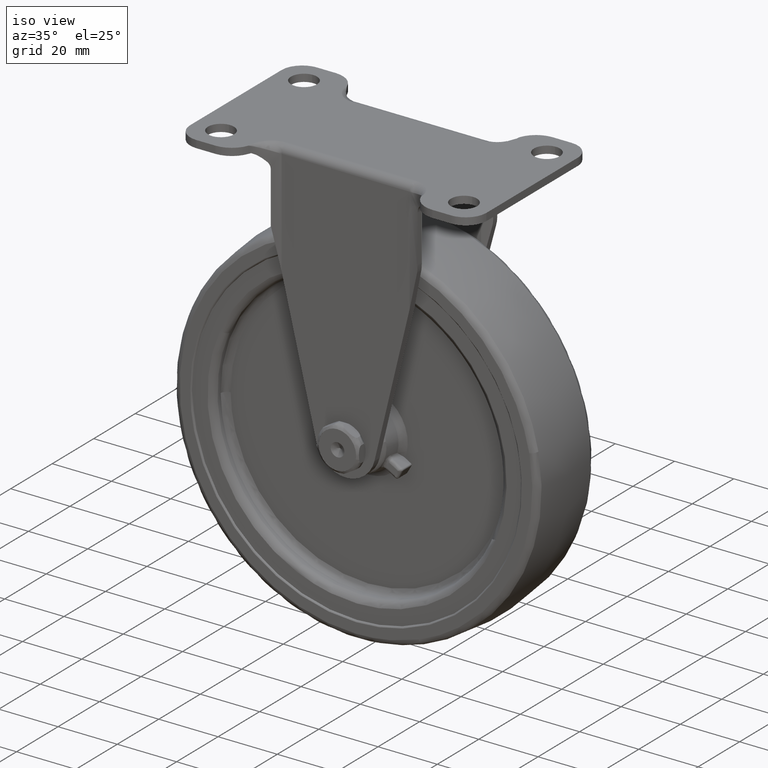
[diagram: clean part render]
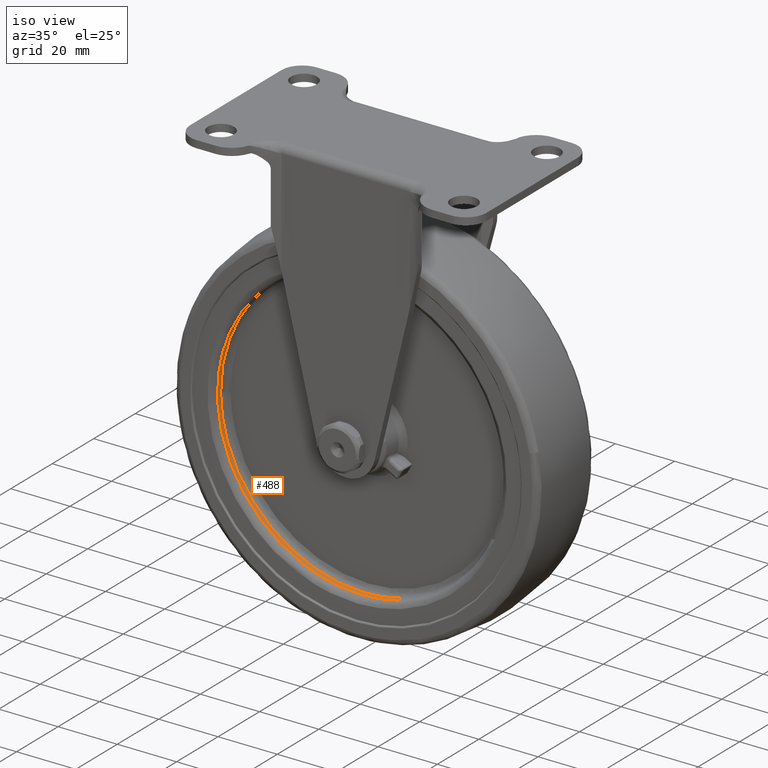
[diagram: same view with one face highlighted and labeled with its STEP entity id]
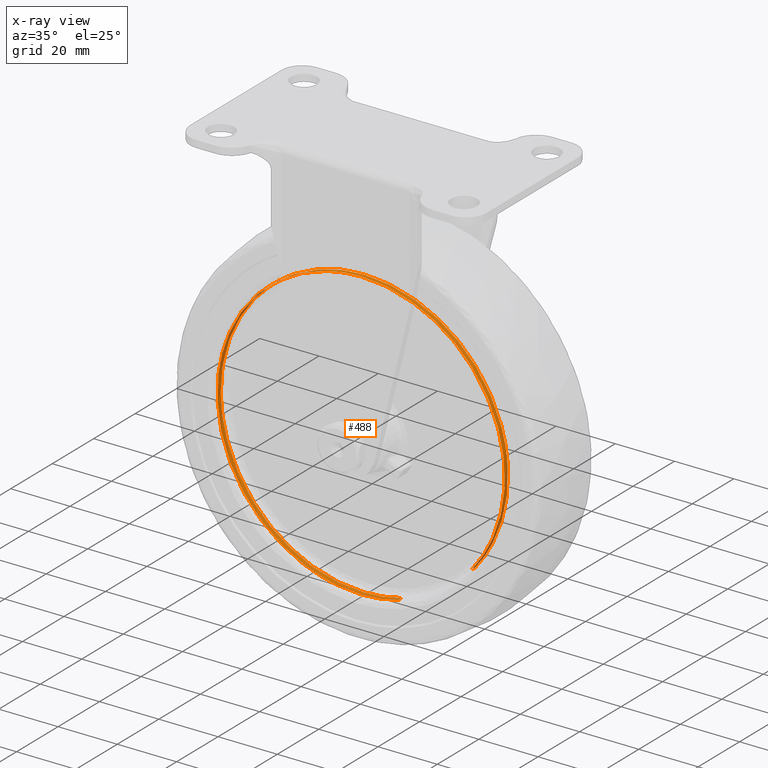
[diagram: x-ray of the same camera — body ghosted, the highlighted face saturated]
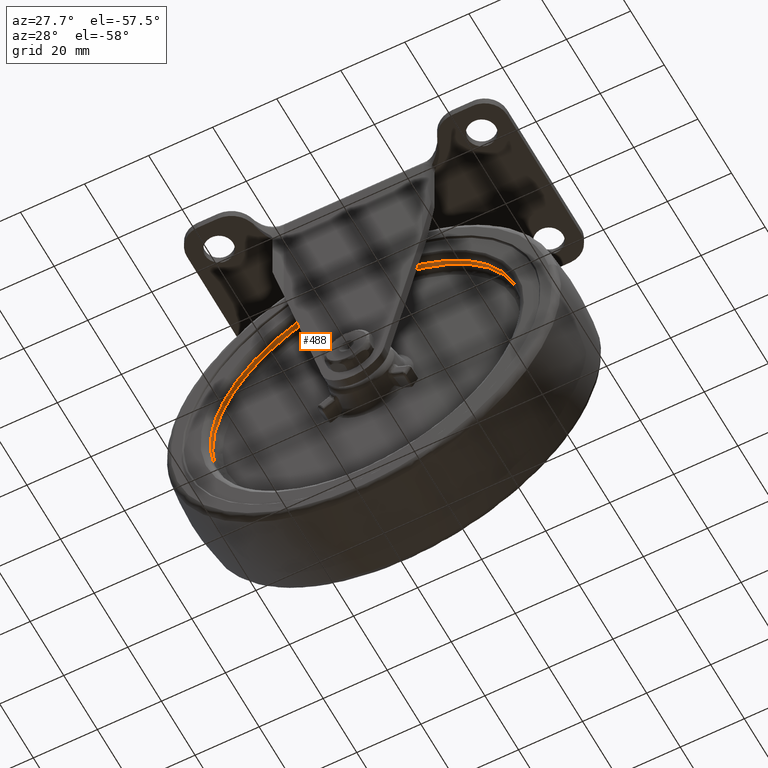
[diagram: same view with one face highlighted and labeled with its STEP entity id]
A machine part, iso view. The second image highlights one B-rep face of the part: STEP entity #488.
The next image is the same camera in x-ray: the body ghosted, the highlighted face saturated — about 0% of this face is hidden behind the body in this view.
A second angle (auxiliary view) of the same face is appended — the face is thin or edge-on in the first view.
In plain terms, the highlighted face is a freeform B-spline surface patch.
Its self-contained STEP definition (entity closure, byte-faithful):
#288=CARTESIAN_POINT('',(-26.470623298217621,-11.037500000110342,-130.353652146495820));
#289=CARTESIAN_POINT('',(-50.587070742965992,-11.037500000110343,-136.802755704084550));
#290=CARTESIAN_POINT('',(-69.849793683471546,-11.037500000110340,-120.923792294304410));
#291=CARTESIAN_POINT('',(-107.273585977775970,-11.037500000110342,-90.073998610832859));
#292=CARTESIAN_POINT('',(-76.423792294304405,-11.037500000110340,-52.650206316528461));
#293=CARTESIAN_POINT('',(-45.573998610832874,-11.037500000110342,-15.226414022224063));
#294=CARTESIAN_POINT('',(-8.150206316528461,-11.037500000110340,-46.076207705695602));
#295=CARTESIAN_POINT('',(29.273585977775941,-11.037500000110342,-76.926001389167141));
#296=CARTESIAN_POINT('',(-1.576207705695595,-11.037500000110340,-114.349793683471600));
#297=CARTESIAN_POINT('',(-26.470623298217621,-9.461562495473284,-130.353652146495820));
#298=CARTESIAN_POINT('',(-50.587070742965992,-9.461562495473284,-136.802755704084550));
#299=CARTESIAN_POINT('',(-69.849793683471546,-9.461562495473283,-120.923792294304410));
#300=CARTESIAN_POINT('',(-107.273585977775970,-9.461562495473283,-90.073998610832859));
#301=CARTESIAN_POINT('',(-76.423792294304405,-9.461562495473283,-52.650206316528461));
#302=CARTESIAN_POINT('',(-45.573998610832874,-9.461562495473283,-15.226414022224063));
#303=CARTESIAN_POINT('',(-8.150206316528461,-9.461562495473283,-46.076207705695602));
#304=CARTESIAN_POINT('',(29.273585977775941,-9.461562495473283,-76.926001389167141));
#305=CARTESIAN_POINT('',(-1.576207705695595,-9.461562495473283,-114.349793683471600));
#313=(BOUNDED_SURFACE()B_SPLINE_SURFACE(2,1,((#288,#297),(#289,#298),(#290,#299),(#291,#300),(#292,#301),(#293,#302),(#294,#303),(#295,#304),(#296,#305)),.UNSPECIFIED.,.F.,.F.,.U.)B_SPLINE_SURFACE_WITH_KNOTS((3,2,2,2,3),(2,2),(0.0,48.214458660228253,128.571889760608710,208.929320860989090,289.286751961369480),(0.0,1.0),.UNSPECIFIED.)GEOMETRIC_REPRESENTATION_ITEM()RATIONAL_B_SPLINE_SURFACE(((0.859411254969543,0.859411254969543),(0.824264068711928,0.824264068711928),(1.0,1.0),(0.707106781186548,0.707106781186548),(1.0,1.0),(0.707106781186548,0.707106781186548),(1.0,1.0),(0.707106781186548,0.707106781186548),(1.0,1.0)))REPRESENTATION_ITEM('')SURFACE());
#314=CARTESIAN_POINT('',(-26.470623298162270,-9.500000000000000,-130.353652146481010));
#315=VERTEX_POINT('',#314);
#316=CARTESIAN_POINT('',(-39.0,-9.500000000000000,-132.0));
#317=VERTEX_POINT('',#316);
#318=CARTESIAN_POINT('',(-26.470623298162277,-9.500000000000000,-130.353652146481070));
#319=CARTESIAN_POINT('',(-32.627147399573055,-9.500000000000000,-132.0));
#320=CARTESIAN_POINT('',(-39.0,-9.500000000000000,-132.0));
#328=(BOUNDED_CURVE()B_SPLINE_CURVE(2,(#318,#319,#320),.UNSPECIFIED.,.F.,.U.)B_SPLINE_CURVE_WITH_KNOTS((3,3),(0.455941417796582,0.500000000000000),.UNSPECIFIED.)CURVE()GEOMETRIC_REPRESENTATION_ITEM()RATIONAL_B_SPLINE_CURVE((0.914957991051761,0.948382160168336,1.0))REPRESENTATION_ITEM(''));
#329=EDGE_CURVE('',#315,#317,#328,.T.);
#330=ORIENTED_EDGE('',*,*,#329,.T.);
#331=CARTESIAN_POINT('',(-87.496170643882991,-9.499999995598589,-84.109452934508525));
#332=VERTEX_POINT('',#331);
#333=CARTESIAN_POINT('',(-39.0,-9.500000000000000,-132.0));
#334=CARTESIAN_POINT('',(-86.894328600177218,-9.500000000000000,-132.0));
#335=CARTESIAN_POINT('',(-87.496170643882991,-9.499999995598589,-84.109452934508525));
#343=(BOUNDED_CURVE()B_SPLINE_CURVE(2,(#333,#334,#335),.UNSPECIFIED.,.F.,.U.)B_SPLINE_CURVE_WITH_KNOTS((3,3),(0.500000000000000,0.747784295920526),.UNSPECIFIED.)CURVE()GEOMETRIC_REPRESENTATION_ITEM()RATIONAL_B_SPLINE_CURVE((1.0,0.709702639985649,0.994854295641245))REPRESENTATION_ITEM(''));
#344=EDGE_CURVE('',#317,#332,#343,.T.);
#345=ORIENTED_EDGE('',*,*,#344,.T.);
#346=CARTESIAN_POINT('',(-39.0,-9.500000000000000,-35.0));
#347=VERTEX_POINT('',#346);
#348=CARTESIAN_POINT('',(-87.496170643882991,-9.499999995598589,-84.109452934508525));
#349=CARTESIAN_POINT('',(-87.500000000000000,-9.499999999999998,-83.804738497772590));
#350=CARTESIAN_POINT('',(-87.500000000000000,-9.500000000000000,-83.500000000000000));
#351=CARTESIAN_POINT('',(-87.499999999999986,-9.500000000000000,-35.0));
#352=CARTESIAN_POINT('',(-39.0,-9.500000000000000,-35.0));
#360=(BOUNDED_CURVE()B_SPLINE_CURVE(2,(#348,#349,#350,#351,#352),.UNSPECIFIED.,.F.,.U.)B_SPLINE_CURVE_WITH_KNOTS((3,2,3),(0.747784295920525,0.750000000000000,1.0),.UNSPECIFIED.)CURVE()GEOMETRIC_REPRESENTATION_ITEM()RATIONAL_B_SPLINE_CURVE((0.994854295641243,0.997404141200898,1.0,0.707106781186547,1.0))REPRESENTATION_ITEM(''));
#361=EDGE_CURVE('',#332,#347,#360,.T.);
#362=ORIENTED_EDGE('',*,*,#361,.T.);
#363=CARTESIAN_POINT('',(9.381935181251000,-9.499999995586382,-80.117937298448467));
#364=VERTEX_POINT('',#363);
#365=CARTESIAN_POINT('',(-39.0,-9.500000000000000,-35.0));
#366=CARTESIAN_POINT('',(6.228037092163803,-9.500000000000000,-35.000000000000007));
#367=CARTESIAN_POINT('',(9.381935181251000,-9.499999995586382,-80.117937298448467));
#375=(BOUNDED_CURVE()B_SPLINE_CURVE(2,(#365,#366,#367),.UNSPECIFIED.,.F.,.U.)B_SPLINE_CURVE_WITH_KNOTS((3,3),(0.0,0.237833686534121),.UNSPECIFIED.)CURVE()GEOMETRIC_REPRESENTATION_ITEM()RATIONAL_B_SPLINE_CURVE((1.0,0.721360504035007,0.972879876384922))REPRESENTATION_ITEM(''));
#376=EDGE_CURVE('',#347,#364,#375,.T.);
#377=ORIENTED_EDGE('',*,*,#376,.T.);
#378=CARTESIAN_POINT('',(-1.576200945060497,-9.499999999999464,-114.349785482161710));
#379=VERTEX_POINT('',#378);
#380=CARTESIAN_POINT('',(9.381935181251000,-9.499999995586382,-80.117937298448467));
#381=CARTESIAN_POINT('',(9.500000000000002,-9.500000000000000,-81.806907879933377));
#382=CARTESIAN_POINT('',(9.500000000000002,-9.500000000000000,-83.500000000000000));
#383=CARTESIAN_POINT('',(9.500000000000002,-9.500000000000002,-100.913273299615010));
#384=CARTESIAN_POINT('',(-1.576200945060497,-9.499999999999464,-114.349785482161710));
#392=(BOUNDED_CURVE()B_SPLINE_CURVE(2,(#380,#381,#382,#383,#384),.UNSPECIFIED.,.F.,.U.)B_SPLINE_CURVE_WITH_KNOTS((3,2,3),(0.237833686534121,0.250000000000000,0.360504592716539),.UNSPECIFIED.)CURVE()GEOMETRIC_REPRESENTATION_ITEM()RATIONAL_B_SPLINE_CURVE((0.972879876384923,0.985746277151541,1.0,0.870535816582333,0.855522728044255))REPRESENTATION_ITEM(''));
#393=EDGE_CURVE('',#364,#379,#392,.T.);
#394=ORIENTED_EDGE('',*,*,#393,.T.);
#395=CARTESIAN_POINT('',(-1.576206321226672,-11.0,-114.349792003976300));
#396=VERTEX_POINT('',#395);
#397=CARTESIAN_POINT('',(-1.576206321226672,-11.0,-114.349792003976300));
#398=CARTESIAN_POINT('',(-1.576200945060497,-9.499999999999464,-114.349785482161710));
#399=QUASI_UNIFORM_CURVE('',1,(#397,#398),.UNSPECIFIED.,.F.,.U.);
#400=EDGE_CURVE('',#396,#379,#399,.T.);
#401=ORIENTED_EDGE('',*,*,#400,.F.);
#402=CARTESIAN_POINT('',(-39.0,-11.0,-35.0));
#403=VERTEX_POINT('',#402);
#404=CARTESIAN_POINT('',(-39.0,-11.0,-35.0));
#405=CARTESIAN_POINT('',(9.500000000000002,-11.0,-35.0));
#406=CARTESIAN_POINT('',(9.500000000000002,-11.0,-83.500000000000000));
#407=CARTESIAN_POINT('',(9.500000000000000,-10.999999999999998,-100.913278070408050));
#408=CARTESIAN_POINT('',(-1.576206321226626,-11.0,-114.349792003976330));
#416=(BOUNDED_CURVE()B_SPLINE_CURVE(2,(#404,#405,#406,#407,#408),.UNSPECIFIED.,.F.,.U.)B_SPLINE_CURVE_WITH_KNOTS((3,2,3),(0.0,0.250000000000000,0.360504619072394),.UNSPECIFIED.)CURVE()GEOMETRIC_REPRESENTATION_ITEM()RATIONAL_B_SPLINE_CURVE((1.0,0.707106781186547,1.0,0.870535785704528,0.855522720882880))REPRESENTATION_ITEM(''));
#417=EDGE_CURVE('',#403,#396,#416,.T.);
#418=ORIENTED_EDGE('',*,*,#417,.F.);
#419=CARTESIAN_POINT('',(-83.389196872103440,-10.999999998869139,-63.959037867862243));
#420=VERTEX_POINT('',#419);
#421=CARTESIAN_POINT('',(-83.389196872103440,-10.999999998869136,-63.959037867862243));
#422=CARTESIAN_POINT('',(-70.640881916318747,-10.999999999999998,-34.999999999999993));
#423=CARTESIAN_POINT('',(-39.0,-11.0,-35.0));
#431=(BOUNDED_CURVE()B_SPLINE_CURVE(2,(#421,#422,#423),.UNSPECIFIED.,.F.,.U.)B_SPLINE_CURVE_WITH_KNOTS((3,3),(0.818414990138724,1.0),.UNSPECIFIED.)CURVE()GEOMETRIC_REPRESENTATION_ITEM()RATIONAL_B_SPLINE_CURVE((0.883563120517961,0.787259927893834,1.0))REPRESENTATION_ITEM(''));
#432=EDGE_CURVE('',#420,#403,#431,.T.);
#433=ORIENTED_EDGE('',*,*,#432,.F.);
#434=CARTESIAN_POINT('',(-58.540962132137750,-10.999999998869139,-127.889196872103400));
#435=VERTEX_POINT('',#434);
#436=CARTESIAN_POINT('',(-58.540962132137743,-10.999999998869136,-127.889196872103470));
#437=CARTESIAN_POINT('',(-87.500000000000000,-10.999999999999998,-115.140881916318730));
#438=CARTESIAN_POINT('',(-87.500000000000000,-11.0,-83.500000000000000));
#439=CARTESIAN_POINT('',(-87.500000000000000,-11.0,-73.297127165229867));
#440=CARTESIAN_POINT('',(-83.389196872103426,-10.999999998869136,-63.959037867862243));
#448=(BOUNDED_CURVE()B_SPLINE_CURVE(2,(#436,#437,#438,#439,#440),.UNSPECIFIED.,.F.,.U.)B_SPLINE_CURVE_WITH_KNOTS((3,2,3),(0.568414990138724,0.750000000000000,0.818414990138724),.UNSPECIFIED.)CURVE()GEOMETRIC_REPRESENTATION_ITEM()RATIONAL_B_SPLINE_CURVE((0.883563120517961,0.787259927893834,1.0,0.919846853292715,0.883563120517962))REPRESENTATION_ITEM(''));
#449=EDGE_CURVE('',#435,#420,#448,.T.);
#450=ORIENTED_EDGE('',*,*,#449,.F.);
#451=CARTESIAN_POINT('',(-39.0,-11.0,-132.0));
#452=VERTEX_POINT('',#451);
#453=CARTESIAN_POINT('',(-39.0,-11.0,-132.0));
#454=CARTESIAN_POINT('',(-49.202872834770446,-11.000000000000002,-131.999999999999970));
#455=CARTESIAN_POINT('',(-58.540962132137750,-10.999999998869136,-127.889196872103400));
#463=(BOUNDED_CURVE()B_SPLINE_CURVE(2,(#453,#454,#455),.UNSPECIFIED.,.F.,.U.)B_SPLINE_CURVE_WITH_KNOTS((3,3),(0.500000000000000,0.568414990138725),.UNSPECIFIED.)CURVE()GEOMETRIC_REPRESENTATION_ITEM()RATIONAL_B_SPLINE_CURVE((1.0,0.919846853292712,0.883563120517960))REPRESENTATION_ITEM(''));
#464=EDGE_CURVE('',#452,#435,#463,.T.);
#465=ORIENTED_EDGE('',*,*,#464,.F.);
#466=CARTESIAN_POINT('',(-26.470623298162270,-11.0,-130.353652146481010));
#467=VERTEX_POINT('',#466);
#468=CARTESIAN_POINT('',(-26.470623298162277,-10.999999999999996,-130.353652146481070));
#469=CARTESIAN_POINT('',(-32.627147399573055,-10.999999999999998,-132.0));
#470=CARTESIAN_POINT('',(-39.0,-11.0,-132.0));
#478=(BOUNDED_CURVE()B_SPLINE_CURVE(2,(#468,#469,#470),.UNSPECIFIED.,.F.,.U.)B_SPLINE_CURVE_WITH_KNOTS((3,3),(0.455941417796582,0.500000000000000),.UNSPECIFIED.)CURVE()GEOMETRIC_REPRESENTATION_ITEM()RATIONAL_B_SPLINE_CURVE((0.914957991051761,0.948382160168336,1.0))REPRESENTATION_ITEM(''));
#479=EDGE_CURVE('',#467,#452,#478,.T.);
#480=ORIENTED_EDGE('',*,*,#479,.F.);
#481=CARTESIAN_POINT('',(-26.470623298162270,-11.0,-130.353652146481010));
#482=CARTESIAN_POINT('',(-26.470623298162270,-9.500000000000000,-130.353652146481010));
#483=QUASI_UNIFORM_CURVE('',1,(#481,#482),.UNSPECIFIED.,.F.,.U.);
#484=EDGE_CURVE('',#467,#315,#483,.T.);
#485=ORIENTED_EDGE('',*,*,#484,.T.);
#486=EDGE_LOOP('',(#330,#345,#362,#377,#394,#401,#418,#433,#450,#465,#480,#485));
#487=FACE_OUTER_BOUND('',#486,.T.);
#488=ADVANCED_FACE('',(#487),#313,.F.);